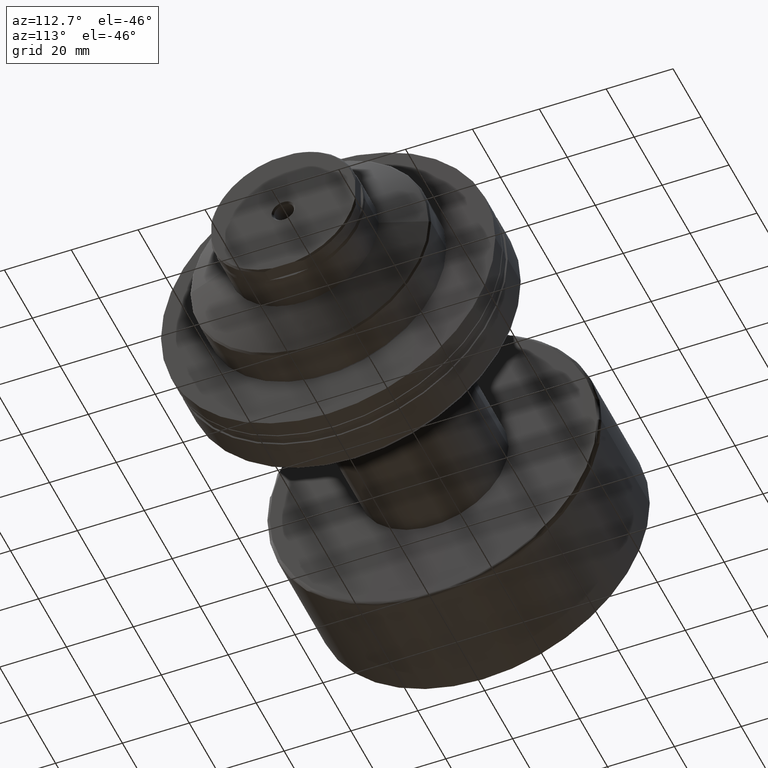
[diagram: clean part render]
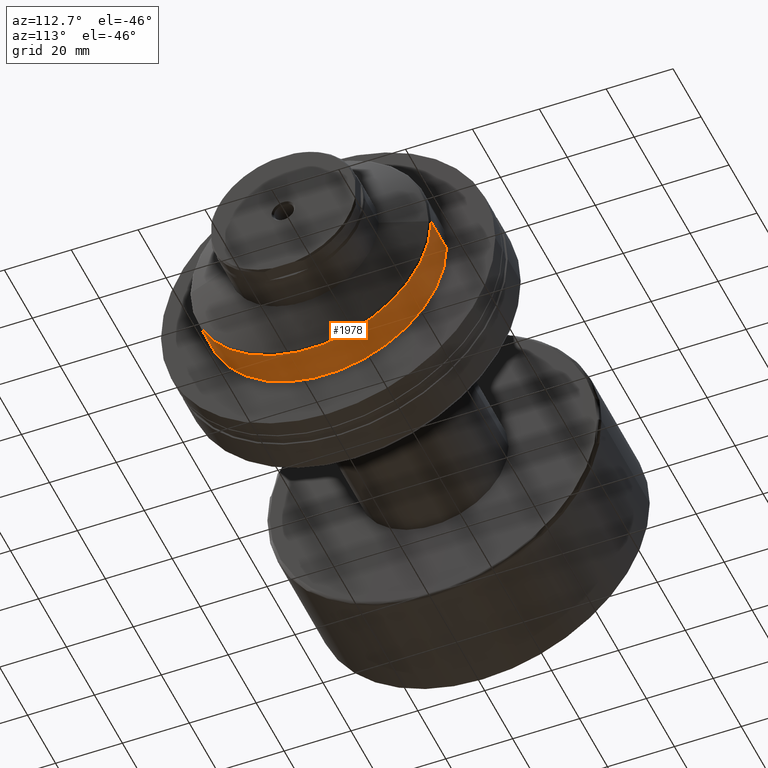
[diagram: same view with one face highlighted and labeled with its STEP entity id]
A machine part, auxiliary view. The second image highlights one B-rep face of the part: STEP entity #1978.
In plain terms, the highlighted cylindrical surface (partial cylindrical patch) has radius 36 mm, axis along (1, 0, 0).
Its self-contained STEP definition (entity closure, byte-faithful):
#7 = AXIS2_PLACEMENT_3D ( 'NONE', #795, #1721, #2209 ) ;
#112 = FACE_OUTER_BOUND ( 'NONE', #770, .T. ) ;
#225 = CARTESIAN_POINT ( 'NONE',  ( -30.28002276692731343, -36.00000000000000711, 4.408728476930471644E-15 ) ) ;
#270 = CARTESIAN_POINT ( 'NONE',  ( -30.28002276692732408, 0.000000000000000000, 0.000000000000000000 ) ) ;
#366 = VERTEX_POINT ( 'NONE', #1910 ) ;
#404 = CARTESIAN_POINT ( 'NONE',  ( -13.60000000000071729, 36.00000000000001421, 0.000000000000000000 ) ) ;
#555 = ORIENTED_EDGE ( 'NONE', *, *, #1213, .F. ) ;
#559 = DIRECTION ( 'NONE',  ( 1.000000000000000000, 2.485414848852932351E-16, -0.000000000000000000 ) ) ;
#718 = DIRECTION ( 'NONE',  ( -2.891205793294678326E-16, 1.000000000000000000, 0.000000000000000000 ) ) ;
#770 = EDGE_LOOP ( 'NONE', ( #555, #2267, #1251, #1898 ) ) ;
#795 = CARTESIAN_POINT ( 'NONE',  ( -13.60000000000070841, 4.145677626412438472E-15, 0.000000000000000000 ) ) ;
#835 = VECTOR ( 'NONE', #559, 1000.000000000000000 ) ;
#874 = CIRCLE ( 'NONE', #1026, 36.00000000000000000 ) ;
#887 = EDGE_CURVE ( 'NONE', #366, #1945, #1706, .T. ) ;
#896 = DIRECTION ( 'NONE',  ( 1.000000000000000000, 2.485414848852932351E-16, -0.000000000000000000 ) ) ;
#956 = DIRECTION ( 'NONE',  ( 1.000000000000000000, 2.485414848852932351E-16, -0.000000000000000000 ) ) ;
#1026 = AXIS2_PLACEMENT_3D ( 'NONE', #1963, #896, #718 ) ;
#1061 = DIRECTION ( 'NONE',  ( -2.891205793294677833E-16, 1.000000000000000000, 0.000000000000000000 ) ) ;
#1152 = AXIS2_PLACEMENT_3D ( 'NONE', #270, #1803, #1061 ) ;
#1159 = VECTOR ( 'NONE', #956, 1000.000000000000000 ) ;
#1213 = EDGE_CURVE ( 'NONE', #1585, #366, #1844, .T. ) ;
#1251 = ORIENTED_EDGE ( 'NONE', *, *, #2159, .T. ) ;
#1396 = CYLINDRICAL_SURFACE ( 'NONE', #1152, 36.00000000000000711 ) ;
#1468 = CARTESIAN_POINT ( 'NONE',  ( -24.50000000000068567, -36.00000000000000000, 4.408728476930471644E-15 ) ) ;
#1542 = EDGE_CURVE ( 'NONE', #1585, #1605, #874, .T. ) ;
#1585 = VERTEX_POINT ( 'NONE', #1468 ) ;
#1605 = VERTEX_POINT ( 'NONE', #1646 ) ;
#1646 = CARTESIAN_POINT ( 'NONE',  ( -24.50000000000070699, 36.00000000000000000, 0.000000000000000000 ) ) ;
#1706 = CIRCLE ( 'NONE', #7, 36.00000000000000711 ) ;
#1721 = DIRECTION ( 'NONE',  ( 1.000000000000000000, 2.485414848852932351E-16, -0.000000000000000000 ) ) ;
#1803 = DIRECTION ( 'NONE',  ( 1.000000000000000000, 2.485414848852932351E-16, -0.000000000000000000 ) ) ;
#1844 = LINE ( 'NONE', #225, #835 ) ;
#1871 = CARTESIAN_POINT ( 'NONE',  ( -30.28002276692733474, 36.00000000000000711, 0.000000000000000000 ) ) ;
#1898 = ORIENTED_EDGE ( 'NONE', *, *, #887, .F. ) ;
#1910 = CARTESIAN_POINT ( 'NONE',  ( -13.60000000000069953, -36.00000000000000000, 4.408728476930471644E-15 ) ) ;
#1945 = VERTEX_POINT ( 'NONE', #404 ) ;
#1963 = CARTESIAN_POINT ( 'NONE',  ( -24.50000000000069633, 1.436575441162745276E-15, 0.000000000000000000 ) ) ;
#1978 = ADVANCED_FACE ( 'NONE', ( #112 ), #1396, .T. ) ;
#2039 = LINE ( 'NONE', #1871, #1159 ) ;
#2159 = EDGE_CURVE ( 'NONE', #1605, #1945, #2039, .T. ) ;
#2209 = DIRECTION ( 'NONE',  ( -2.409338161078898194E-16, 1.000000000000000000, 0.000000000000000000 ) ) ;
#2267 = ORIENTED_EDGE ( 'NONE', *, *, #1542, .T. ) ;